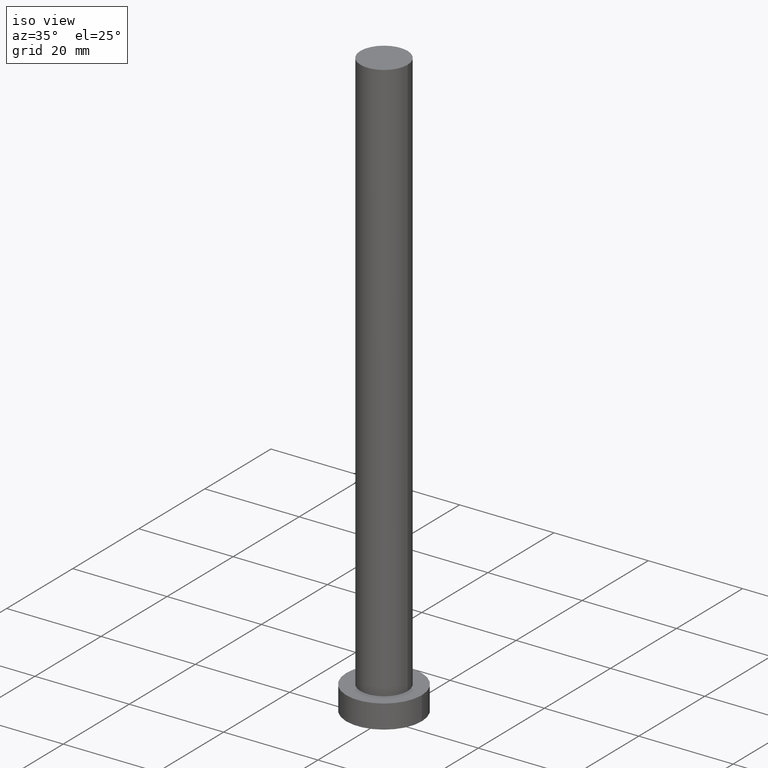
[diagram: clean part render]
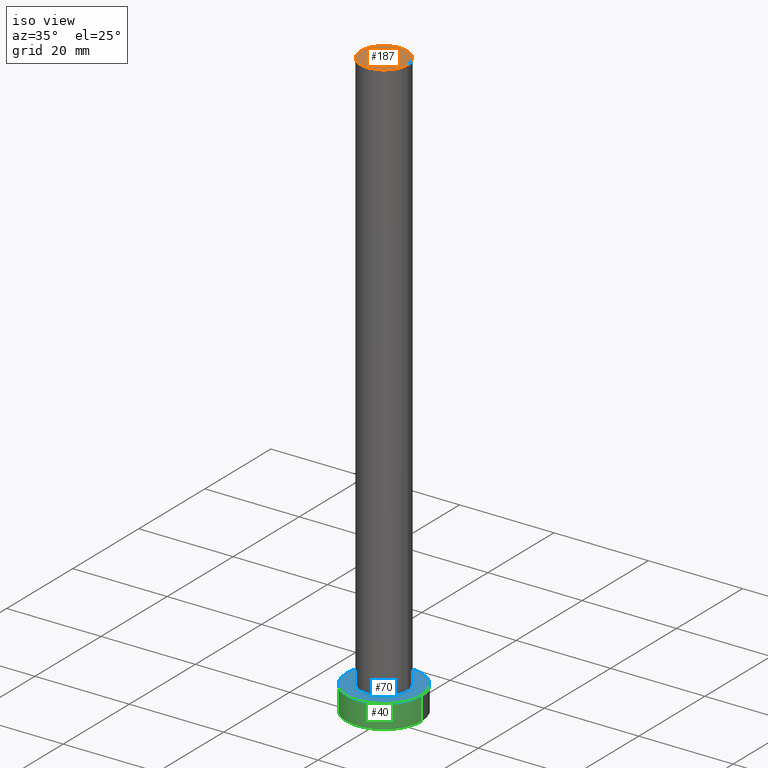
[diagram: same view with three faces highlighted in distinct colors, each labeled with its STEP entity id]
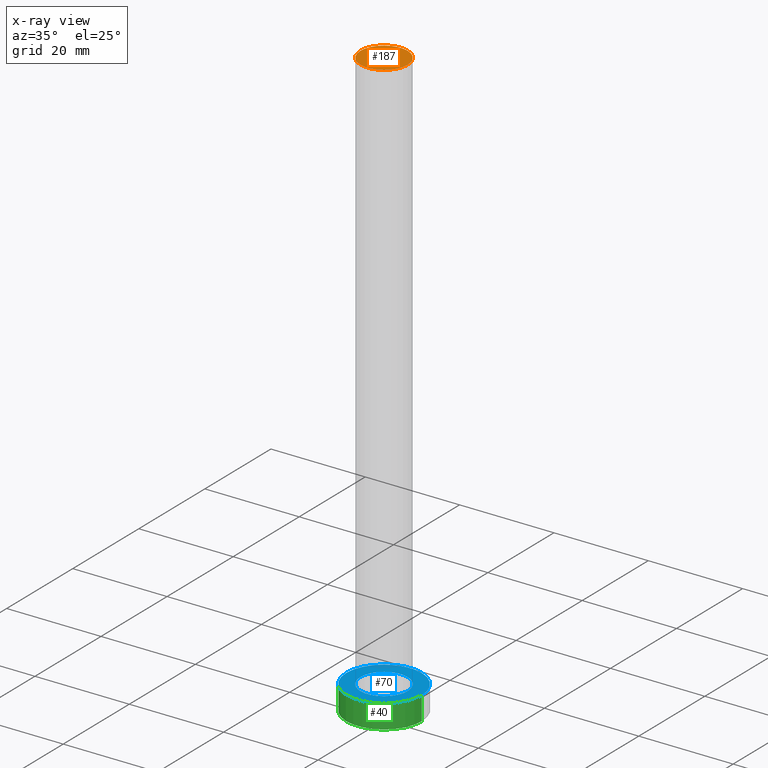
[diagram: x-ray of the same camera — body ghosted, the three highlighted faces saturated]
A machine part, iso view with three faces highlighted in distinct colors.
The next image is the same camera in x-ray (body ghosted, the three faces saturated) — at least one of them is partly hidden behind the body in this view.
Their STEP definitions:

[orange] entity #187 — the highlighted planar face has unit normal (0, 0, 1).
#13 = EDGE_CURVE ( 'NONE', #48, #95, #240, .T. ) ;
#33 = EDGE_LOOP ( 'NONE', ( #156, #138 ) ) ;
#48 = VERTEX_POINT ( 'NONE', #106 ) ;
#60 = DIRECTION ( 'NONE',  ( 1.000000000000000000, 0.000000000000000000, 0.000000000000000000 ) ) ;
#77 = CARTESIAN_POINT ( 'NONE',  ( -5.000000000000000000, 0.000000000000000000, 125.0000000000000000 ) ) ;
#80 = PLANE ( 'NONE',  #122 ) ;
#95 = VERTEX_POINT ( 'NONE', #77 ) ;
#106 = CARTESIAN_POINT ( 'NONE',  ( 5.000000000000000000, 6.123233995736766282E-16, 125.0000000000000000 ) ) ;
#122 = AXIS2_PLACEMENT_3D ( 'NONE', #249, #231, #245 ) ;
#132 = DIRECTION ( 'NONE',  ( 1.000000000000000000, 0.000000000000000000, 0.000000000000000000 ) ) ;
#134 = AXIS2_PLACEMENT_3D ( 'NONE', #162, #166, #132 ) ;
#138 = ORIENTED_EDGE ( 'NONE', *, *, #13, .T. ) ;
#155 = EDGE_CURVE ( 'NONE', #95, #48, #168, .T. ) ;
#156 = ORIENTED_EDGE ( 'NONE', *, *, #155, .T. ) ;
#162 = CARTESIAN_POINT ( 'NONE',  ( 0.000000000000000000, 0.000000000000000000, 125.0000000000000000 ) ) ;
#166 = DIRECTION ( 'NONE',  ( 0.000000000000000000, 0.000000000000000000, 1.000000000000000000 ) ) ;
#168 = CIRCLE ( 'NONE', #176, 5.000000000000000000 ) ;
#176 = AXIS2_PLACEMENT_3D ( 'NONE', #250, #243, #60 ) ;
#187 = ADVANCED_FACE ( 'NONE', ( #195 ), #80, .T. ) ;
#195 = FACE_OUTER_BOUND ( 'NONE', #33, .T. ) ;
#231 = DIRECTION ( 'NONE',  ( 0.000000000000000000, 0.000000000000000000, 1.000000000000000000 ) ) ;
#240 = CIRCLE ( 'NONE', #134, 5.000000000000000000 ) ;
#243 = DIRECTION ( 'NONE',  ( 0.000000000000000000, 0.000000000000000000, 1.000000000000000000 ) ) ;
#245 = DIRECTION ( 'NONE',  ( 1.000000000000000000, 0.000000000000000000, -0.000000000000000000 ) ) ;
#249 = CARTESIAN_POINT ( 'NONE',  ( 0.000000000000000000, 0.000000000000000000, 125.0000000000000000 ) ) ;
#250 = CARTESIAN_POINT ( 'NONE',  ( 0.000000000000000000, 0.000000000000000000, 125.0000000000000000 ) ) ;

[blue] entity #70 — the highlighted planar face has unit normal (0, 0, 1).
#3 = EDGE_CURVE ( 'NONE', #247, #142, #169, .T. ) ;
#5 = VERTEX_POINT ( 'NONE', #28 ) ;
#12 = CARTESIAN_POINT ( 'NONE',  ( 0.000000000000000000, 0.000000000000000000, 5.000000000000000000 ) ) ;
#15 = CARTESIAN_POINT ( 'NONE',  ( 0.000000000000000000, 0.000000000000000000, 5.000000000000000000 ) ) ;
#16 = EDGE_CURVE ( 'NONE', #142, #247, #24, .T. ) ;
#18 = DIRECTION ( 'NONE',  ( 0.000000000000000000, 0.000000000000000000, 1.000000000000000000 ) ) ;
#24 = CIRCLE ( 'NONE', #108, 5.000000000000000000 ) ;
#28 = CARTESIAN_POINT ( 'NONE',  ( -8.000000000000000000, 0.000000000000000000, 5.000000000000000000 ) ) ;
#30 = VERTEX_POINT ( 'NONE', #144 ) ;
#35 = CARTESIAN_POINT ( 'NONE',  ( 0.000000000000000000, 0.000000000000000000, 5.000000000000000000 ) ) ;
#61 = CARTESIAN_POINT ( 'NONE',  ( -5.000000000000000000, 0.000000000000000000, 5.000000000000000000 ) ) ;
#70 = ADVANCED_FACE ( 'NONE', ( #74, #147 ), #226, .T. ) ;
#71 = CARTESIAN_POINT ( 'NONE',  ( 0.000000000000000000, 0.000000000000000000, 5.000000000000000000 ) ) ;
#73 = AXIS2_PLACEMENT_3D ( 'NONE', #12, #75, #149 ) ;
#74 = FACE_BOUND ( 'NONE', #196, .T. ) ;
#75 = DIRECTION ( 'NONE',  ( 0.000000000000000000, 0.000000000000000000, 1.000000000000000000 ) ) ;
#81 = CIRCLE ( 'NONE', #135, 8.000000000000000000 ) ;
#83 = CARTESIAN_POINT ( 'NONE',  ( 0.000000000000000000, 0.000000000000000000, 5.000000000000000000 ) ) ;
#84 = EDGE_LOOP ( 'NONE', ( #182, #90 ) ) ;
#90 = ORIENTED_EDGE ( 'NONE', *, *, #230, .T. ) ;
#103 = AXIS2_PLACEMENT_3D ( 'NONE', #71, #184, #223 ) ;
#108 = AXIS2_PLACEMENT_3D ( 'NONE', #35, #160, #126 ) ;
#111 = ORIENTED_EDGE ( 'NONE', *, *, #16, .F. ) ;
#120 = DIRECTION ( 'NONE',  ( 1.000000000000000000, 0.000000000000000000, 0.000000000000000000 ) ) ;
#126 = DIRECTION ( 'NONE',  ( 1.000000000000000000, 0.000000000000000000, 0.000000000000000000 ) ) ;
#135 = AXIS2_PLACEMENT_3D ( 'NONE', #83, #18, #120 ) ;
#140 = AXIS2_PLACEMENT_3D ( 'NONE', #15, #175, #211 ) ;
#142 = VERTEX_POINT ( 'NONE', #229 ) ;
#144 = CARTESIAN_POINT ( 'NONE',  ( 8.000000000000000000, 9.797174393178825657E-16, 5.000000000000000000 ) ) ;
#147 = FACE_OUTER_BOUND ( 'NONE', #84, .T. ) ;
#149 = DIRECTION ( 'NONE',  ( 1.000000000000000000, 0.000000000000000000, -0.000000000000000000 ) ) ;
#160 = DIRECTION ( 'NONE',  ( 0.000000000000000000, 0.000000000000000000, 1.000000000000000000 ) ) ;
#169 = CIRCLE ( 'NONE', #103, 5.000000000000000000 ) ;
#175 = DIRECTION ( 'NONE',  ( 0.000000000000000000, 0.000000000000000000, 1.000000000000000000 ) ) ;
#182 = ORIENTED_EDGE ( 'NONE', *, *, #218, .T. ) ;
#184 = DIRECTION ( 'NONE',  ( 0.000000000000000000, 0.000000000000000000, 1.000000000000000000 ) ) ;
#185 = ORIENTED_EDGE ( 'NONE', *, *, #3, .F. ) ;
#190 = CIRCLE ( 'NONE', #140, 8.000000000000000000 ) ;
#196 = EDGE_LOOP ( 'NONE', ( #185, #111 ) ) ;
#211 = DIRECTION ( 'NONE',  ( 1.000000000000000000, 0.000000000000000000, 0.000000000000000000 ) ) ;
#218 = EDGE_CURVE ( 'NONE', #5, #30, #190, .T. ) ;
#223 = DIRECTION ( 'NONE',  ( 1.000000000000000000, 0.000000000000000000, 0.000000000000000000 ) ) ;
#226 = PLANE ( 'NONE',  #73 ) ;
#229 = CARTESIAN_POINT ( 'NONE',  ( 5.000000000000000000, 6.123233995736766282E-16, 5.000000000000000000 ) ) ;
#230 = EDGE_CURVE ( 'NONE', #30, #5, #81, .T. ) ;
#247 = VERTEX_POINT ( 'NONE', #61 ) ;

[green] entity #40 — the highlighted cylindrical surface (partial cylindrical patch) has radius 8 mm, axis along (-0, -0, -1).
#5 = VERTEX_POINT ( 'NONE', #28 ) ;
#9 = VERTEX_POINT ( 'NONE', #167 ) ;
#15 = CARTESIAN_POINT ( 'NONE',  ( 0.000000000000000000, 0.000000000000000000, 5.000000000000000000 ) ) ;
#26 = EDGE_CURVE ( 'NONE', #91, #9, #63, .T. ) ;
#28 = CARTESIAN_POINT ( 'NONE',  ( -8.000000000000000000, 0.000000000000000000, 5.000000000000000000 ) ) ;
#30 = VERTEX_POINT ( 'NONE', #144 ) ;
#31 = ORIENTED_EDGE ( 'NONE', *, *, #117, .T. ) ;
#40 = ADVANCED_FACE ( 'NONE', ( #145 ), #55, .T. ) ;
#53 = EDGE_CURVE ( 'NONE', #30, #9, #202, .T. ) ;
#54 = AXIS2_PLACEMENT_3D ( 'NONE', #68, #219, #112 ) ;
#55 = CYLINDRICAL_SURFACE ( 'NONE', #54, 8.000000000000000000 ) ;
#56 = CARTESIAN_POINT ( 'NONE',  ( 8.000000000000000000, 9.797174393178825657E-16, 5.000000000000000000 ) ) ;
#63 = CIRCLE ( 'NONE', #252, 8.000000000000000000 ) ;
#68 = CARTESIAN_POINT ( 'NONE',  ( 0.000000000000000000, 0.000000000000000000, 5.000000000000000000 ) ) ;
#91 = VERTEX_POINT ( 'NONE', #199 ) ;
#96 = CARTESIAN_POINT ( 'NONE',  ( -8.000000000000000000, 0.000000000000000000, 5.000000000000000000 ) ) ;
#98 = DIRECTION ( 'NONE',  ( -0.000000000000000000, -0.000000000000000000, -1.000000000000000000 ) ) ;
#107 = DIRECTION ( 'NONE',  ( 0.000000000000000000, 0.000000000000000000, 1.000000000000000000 ) ) ;
#112 = DIRECTION ( 'NONE',  ( -1.000000000000000000, 0.000000000000000000, 0.000000000000000000 ) ) ;
#116 = LINE ( 'NONE', #96, #118 ) ;
#117 = EDGE_CURVE ( 'NONE', #5, #91, #116, .T. ) ;
#118 = VECTOR ( 'NONE', #98, 1000.000000000000000 ) ;
#140 = AXIS2_PLACEMENT_3D ( 'NONE', #15, #175, #211 ) ;
#144 = CARTESIAN_POINT ( 'NONE',  ( 8.000000000000000000, 9.797174393178825657E-16, 5.000000000000000000 ) ) ;
#145 = FACE_OUTER_BOUND ( 'NONE', #251, .T. ) ;
#157 = VECTOR ( 'NONE', #186, 1000.000000000000000 ) ;
#165 = DIRECTION ( 'NONE',  ( 1.000000000000000000, 0.000000000000000000, 0.000000000000000000 ) ) ;
#167 = CARTESIAN_POINT ( 'NONE',  ( 8.000000000000000000, 9.797174393178825657E-16, 0.000000000000000000 ) ) ;
#175 = DIRECTION ( 'NONE',  ( 0.000000000000000000, 0.000000000000000000, 1.000000000000000000 ) ) ;
#186 = DIRECTION ( 'NONE',  ( -0.000000000000000000, -0.000000000000000000, -1.000000000000000000 ) ) ;
#190 = CIRCLE ( 'NONE', #140, 8.000000000000000000 ) ;
#199 = CARTESIAN_POINT ( 'NONE',  ( -8.000000000000000000, 0.000000000000000000, 0.000000000000000000 ) ) ;
#202 = LINE ( 'NONE', #56, #157 ) ;
#206 = CARTESIAN_POINT ( 'NONE',  ( 0.000000000000000000, 0.000000000000000000, 0.000000000000000000 ) ) ;
#211 = DIRECTION ( 'NONE',  ( 1.000000000000000000, 0.000000000000000000, 0.000000000000000000 ) ) ;
#218 = EDGE_CURVE ( 'NONE', #5, #30, #190, .T. ) ;
#219 = DIRECTION ( 'NONE',  ( -0.000000000000000000, -0.000000000000000000, -1.000000000000000000 ) ) ;
#227 = ORIENTED_EDGE ( 'NONE', *, *, #53, .F. ) ;
#238 = ORIENTED_EDGE ( 'NONE', *, *, #26, .T. ) ;
#251 = EDGE_LOOP ( 'NONE', ( #227, #254, #31, #238 ) ) ;
#252 = AXIS2_PLACEMENT_3D ( 'NONE', #206, #107, #165 ) ;
#254 = ORIENTED_EDGE ( 'NONE', *, *, #218, .F. ) ;